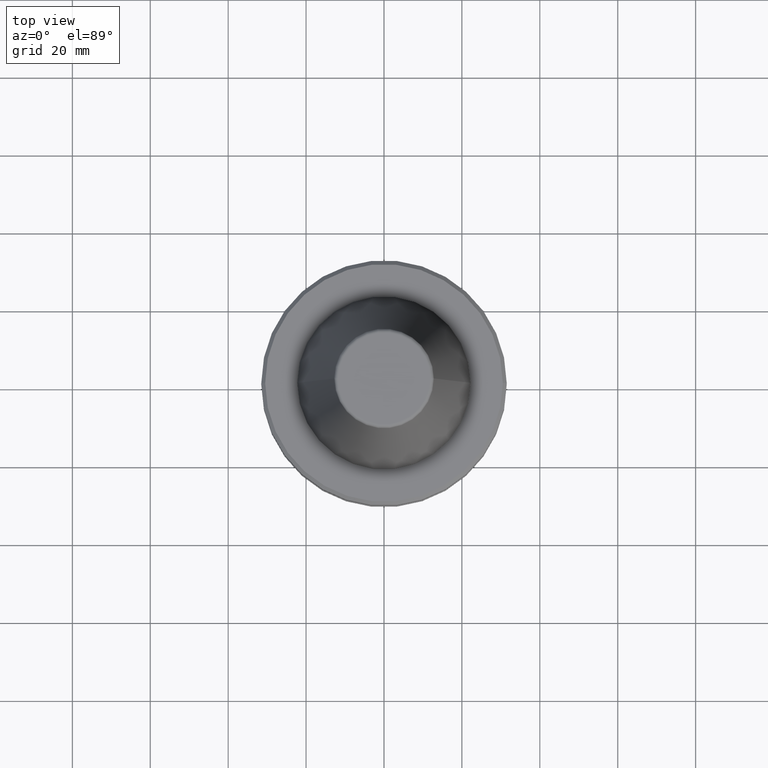
[diagram: clean part render]
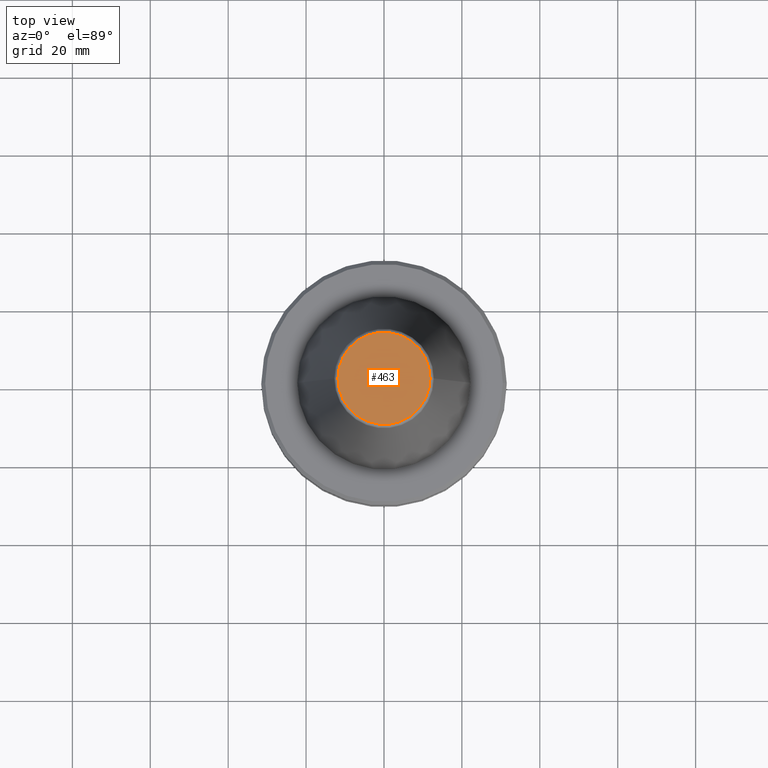
[diagram: same view with one face highlighted and labeled with its STEP entity id]
A machine part, top view. The second image highlights one B-rep face of the part: STEP entity #463.
In plain terms, the highlighted planar face has unit normal (0, 0, -1).
Its self-contained STEP definition (entity closure, byte-faithful):
#15 = DIRECTION ( 'NONE',  ( -0.0000000000000000000, -0.0000000000000000000, 1.000000000000000000 ) ) ;
#65 = CARTESIAN_POINT ( 'NONE',  ( 0.0000000000000000000, 0.0000000000000000000, 65.39999999999984900 ) ) ;
#117 = DIRECTION ( 'NONE',  ( -1.000000000000000000, 0.0000000000000000000, -0.0000000000000000000 ) ) ;
#204 = CIRCLE ( 'NONE', #586, 11.82266927716801800 ) ;
#236 = CARTESIAN_POINT ( 'NONE',  ( 0.0000000000000000000, 0.0000000000000000000, 65.39999999999984900 ) ) ;
#293 = ORIENTED_EDGE ( 'NONE', *, *, #886, .T. ) ;
#342 = EDGE_LOOP ( 'NONE', ( #754, #293 ) ) ;
#376 = DIRECTION ( 'NONE',  ( 0.0000000000000000000, 0.0000000000000000000, -1.000000000000000000 ) ) ;
#414 = CIRCLE ( 'NONE', #771, 11.82266927716801800 ) ;
#441 = DIRECTION ( 'NONE',  ( 1.000000000000000000, 0.0000000000000000000, 0.0000000000000000000 ) ) ;
#463 = ADVANCED_FACE ( 'NONE', ( #910 ), #560, .F. ) ;
#490 = EDGE_CURVE ( 'NONE', #587, #783, #204, .T. ) ;
#527 = CARTESIAN_POINT ( 'NONE',  ( 0.0000000000000000000, 11.82266927716801800, 65.39999999999967900 ) ) ;
#560 = PLANE ( 'NONE',  #818 ) ;
#586 = AXIS2_PLACEMENT_3D ( 'NONE', #65, #15, #894 ) ;
#587 = VERTEX_POINT ( 'NONE', #904 ) ;
#754 = ORIENTED_EDGE ( 'NONE', *, *, #490, .T. ) ;
#761 = DIRECTION ( 'NONE',  ( -0.0000000000000000000, -0.0000000000000000000, 1.000000000000000000 ) ) ;
#771 = AXIS2_PLACEMENT_3D ( 'NONE', #236, #761, #441 ) ;
#783 = VERTEX_POINT ( 'NONE', #962 ) ;
#818 = AXIS2_PLACEMENT_3D ( 'NONE', #527, #376, #117 ) ;
#886 = EDGE_CURVE ( 'NONE', #783, #587, #414, .T. ) ;
#894 = DIRECTION ( 'NONE',  ( 1.000000000000000000, 0.0000000000000000000, 0.0000000000000000000 ) ) ;
#904 = CARTESIAN_POINT ( 'NONE',  ( 11.82266927716801800, 0.0000000000000000000, 65.39999999999984900 ) ) ;
#910 = FACE_OUTER_BOUND ( 'NONE', #342, .T. ) ;
#962 = CARTESIAN_POINT ( 'NONE',  ( -11.82266927716801800, 1.508450817090333200E-015, 65.39999999999984900 ) ) ;